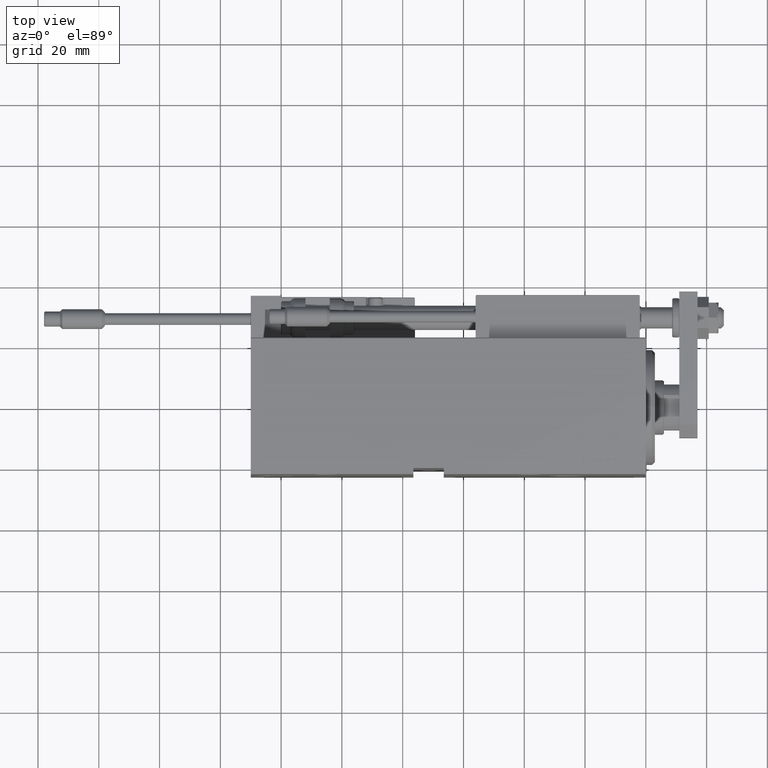
[diagram: clean part render]
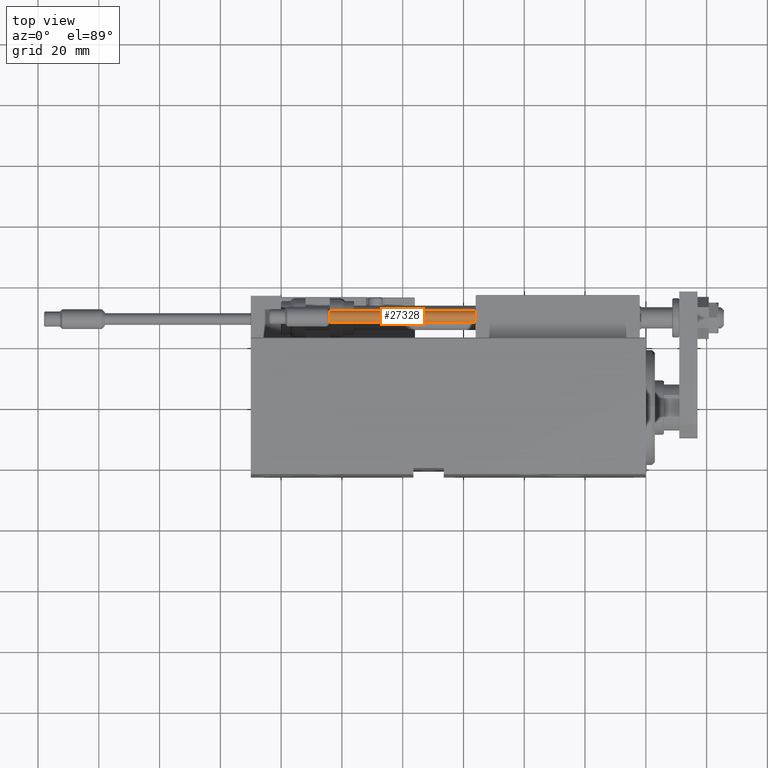
[diagram: same view with one face highlighted and labeled with its STEP entity id]
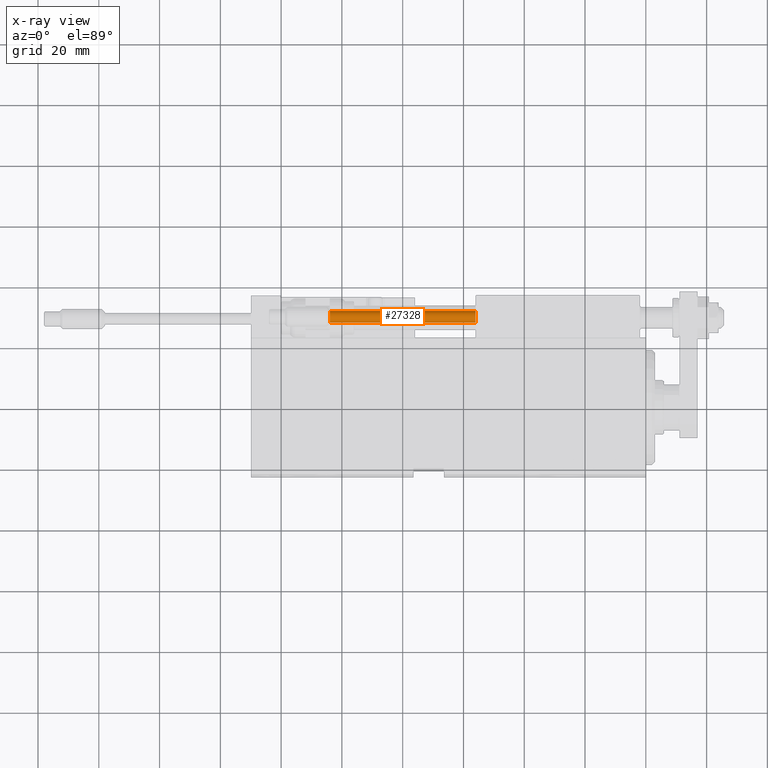
[diagram: x-ray of the same camera — body ghosted, the highlighted face saturated]
A machine part, top view. The second image highlights one B-rep face of the part: STEP entity #27328.
The next image is the same camera in x-ray: the body ghosted, the highlighted face saturated — about 0% of this face is hidden behind the body in this view.
In plain terms, the highlighted cylindrical surface (edge-blend (fillet) strip) has radius 1.9 mm, axis along (1, 0, -0).
Its self-contained STEP definition (entity closure, byte-faithful):
#220 = CARTESIAN_POINT ( 'NONE',  ( -1.899999999999999467, 0.000000000000000000, 0.000000000000000000 ) ) ;
#822 = EDGE_CURVE ( 'NONE', #36323, #41009, #26698, .T. ) ;
#2047 = CARTESIAN_POINT ( 'NONE',  ( 0.000000000000000000, 0.000000000000000000, 48.00000000000000000 ) ) ;
#6419 = CARTESIAN_POINT ( 'NONE',  ( -1.899999999999999467, 0.000000000000000000, 48.00000000000000000 ) ) ;
#6844 = AXIS2_PLACEMENT_3D ( 'NONE', #2047, #45397, #29931 ) ;
#7301 = DIRECTION ( 'NONE',  ( 0.000000000000000000, 0.000000000000000000, 1.000000000000000000 ) ) ;
#9748 = DIRECTION ( 'NONE',  ( -0.000000000000000000, -0.000000000000000000, -1.000000000000000000 ) ) ;
#11393 = AXIS2_PLACEMENT_3D ( 'NONE', #21497, #33382, #41007 ) ;
#13754 = CARTESIAN_POINT ( 'NONE',  ( 1.899999999999999467, 2.326828918379970872E-16, 48.00000000000000000 ) ) ;
#15161 = ORIENTED_EDGE ( 'NONE', *, *, #16353, .F. ) ;
#15454 = CIRCLE ( 'NONE', #11393, 1.899999999999999467 ) ;
#15539 = EDGE_CURVE ( 'NONE', #30103, #49753, #44240, .T. ) ;
#16353 = EDGE_CURVE ( 'NONE', #30103, #36323, #36498, .T. ) ;
#16713 = EDGE_CURVE ( 'NONE', #49753, #41009, #15454, .T. ) ;
#17273 = CARTESIAN_POINT ( 'NONE',  ( -1.899999999999999467, 0.000000000000000000, 48.00000000000000000 ) ) ;
#18013 = EDGE_LOOP ( 'NONE', ( #35231, #15161, #22773, #23431 ) ) ;
#21497 = CARTESIAN_POINT ( 'NONE',  ( 0.000000000000000000, 0.000000000000000000, 0.000000000000000000 ) ) ;
#21741 = CARTESIAN_POINT ( 'NONE',  ( 1.899999999999999467, 2.326828918379970872E-16, 48.00000000000000000 ) ) ;
#22773 = ORIENTED_EDGE ( 'NONE', *, *, #15539, .T. ) ;
#23431 = ORIENTED_EDGE ( 'NONE', *, *, #16713, .T. ) ;
#25177 = AXIS2_PLACEMENT_3D ( 'NONE', #41803, #7301, #41308 ) ;
#26698 = LINE ( 'NONE', #21741, #40006 ) ;
#27328 = ADVANCED_FACE ( 'NONE', ( #41598 ), #37541, .T. ) ;
#28339 = VECTOR ( 'NONE', #9748, 1000.000000000000000 ) ;
#29931 = DIRECTION ( 'NONE',  ( -1.000000000000000000, 0.000000000000000000, 0.000000000000000000 ) ) ;
#30103 = VERTEX_POINT ( 'NONE', #17273 ) ;
#30502 = DIRECTION ( 'NONE',  ( -0.000000000000000000, -0.000000000000000000, -1.000000000000000000 ) ) ;
#33382 = DIRECTION ( 'NONE',  ( 0.000000000000000000, 0.000000000000000000, 1.000000000000000000 ) ) ;
#35231 = ORIENTED_EDGE ( 'NONE', *, *, #822, .F. ) ;
#36323 = VERTEX_POINT ( 'NONE', #13754 ) ;
#36498 = CIRCLE ( 'NONE', #25177, 1.899999999999999467 ) ;
#37541 = CYLINDRICAL_SURFACE ( 'NONE', #6844, 1.899999999999999467 ) ;
#39235 = CARTESIAN_POINT ( 'NONE',  ( 1.899999999999999467, 2.326828918379970872E-16, 0.000000000000000000 ) ) ;
#40006 = VECTOR ( 'NONE', #30502, 1000.000000000000000 ) ;
#41007 = DIRECTION ( 'NONE',  ( 1.000000000000000000, 0.000000000000000000, 0.000000000000000000 ) ) ;
#41009 = VERTEX_POINT ( 'NONE', #39235 ) ;
#41308 = DIRECTION ( 'NONE',  ( 1.000000000000000000, 0.000000000000000000, 0.000000000000000000 ) ) ;
#41598 = FACE_OUTER_BOUND ( 'NONE', #18013, .T. ) ;
#41803 = CARTESIAN_POINT ( 'NONE',  ( 0.000000000000000000, 0.000000000000000000, 48.00000000000000000 ) ) ;
#44240 = LINE ( 'NONE', #6419, #28339 ) ;
#45397 = DIRECTION ( 'NONE',  ( -0.000000000000000000, -0.000000000000000000, -1.000000000000000000 ) ) ;
#49753 = VERTEX_POINT ( 'NONE', #220 ) ;